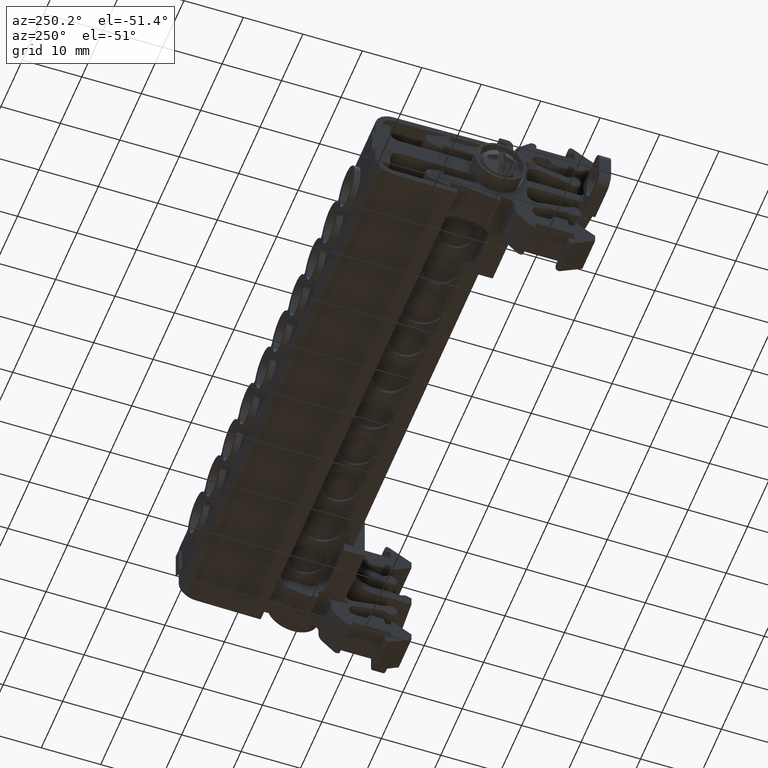
[diagram: clean part render]
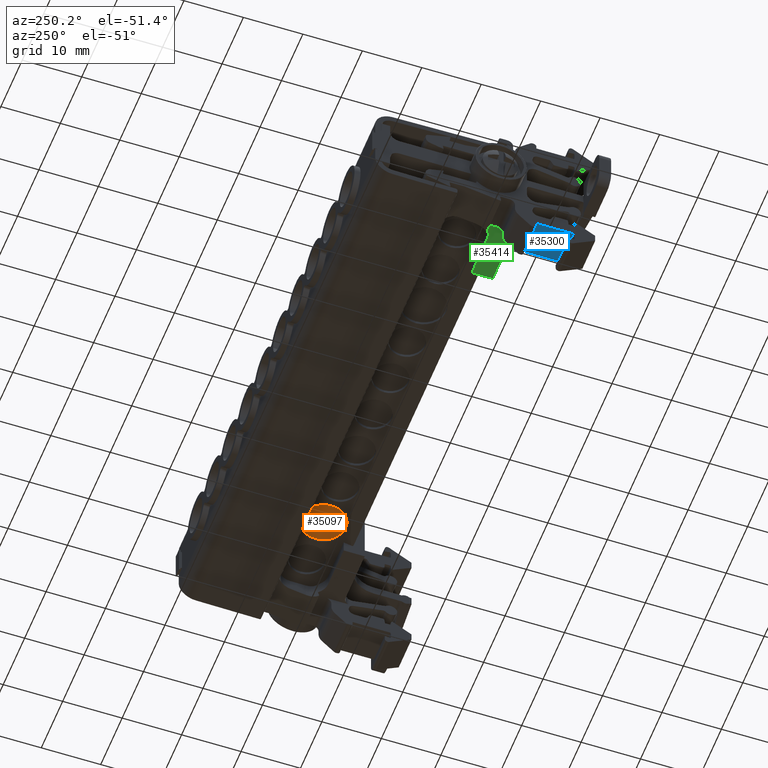
[diagram: same view with three faces highlighted in distinct colors, each labeled with its STEP entity id]
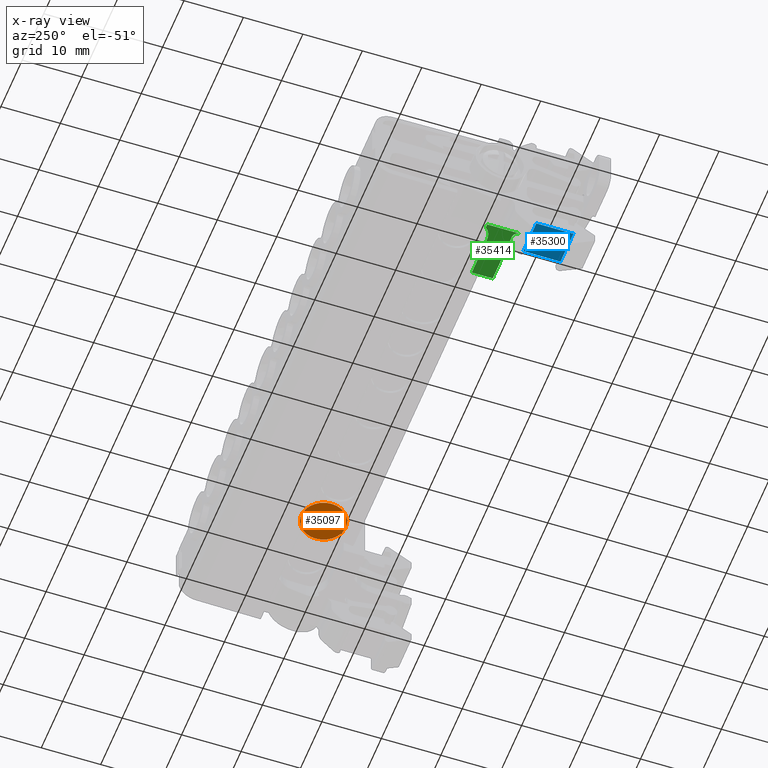
[diagram: x-ray of the same camera — body ghosted, the three highlighted faces saturated]
A machine part, auxiliary view with three faces highlighted in distinct colors.
The next image is the same camera in x-ray (body ghosted, the three faces saturated) — at least one of them is partly hidden behind the body in this view.
Their STEP definitions:

[orange] entity #35097 — the highlighted planar face has unit normal (0, 0, 1).
#712 = CARTESIAN_POINT ( 'NONE',  ( -6.305396493686445500, -39.46391012921720400, 93.25723811290791300 ) ) ;
#734 = CARTESIAN_POINT ( 'NONE',  ( -13.80539649368645900, -39.46391012921720400, 93.25723811290791300 ) ) ;
#1813 = CARTESIAN_POINT ( 'NONE',  ( -10.05539649368645200, -39.46391012921720400, 93.25723811290791300 ) ) ;
#1817 = DIRECTION ( 'NONE',  ( 1.000000000000000000, 0.0000000000000000000, 0.0000000000000000000 ) ) ;
#1832 = DIRECTION ( 'NONE',  ( -0.0000000000000000000, -0.0000000000000000000, -1.000000000000000000 ) ) ;
#7085 = VERTEX_POINT ( 'NONE', #712 ) ;
#7103 = VERTEX_POINT ( 'NONE', #734 ) ;
#8486 = EDGE_CURVE ( 'NONE', #7085, #7103, #14574, .T. ) ;
#9590 = FACE_OUTER_BOUND ( 'NONE', #31317, .T. ) ;
#9782 = PLANE ( 'NONE',  #10302 ) ;
#9835 = CARTESIAN_POINT ( 'NONE',  ( -78.60539649368644200, -44.96391012921720400, 93.25723811290791300 ) ) ;
#9894 = DIRECTION ( 'NONE',  ( 0.0000000000000000000, 0.0000000000000000000, 1.000000000000000000 ) ) ;
#10043 = DIRECTION ( 'NONE',  ( 1.000000000000000000, 0.0000000000000000000, -0.0000000000000000000 ) ) ;
#10302 = AXIS2_PLACEMENT_3D ( 'NONE', #9835, #9894, #10043 ) ;
#14574 = CIRCLE ( 'NONE', #14617, 3.750000000000006700 ) ;
#14617 = AXIS2_PLACEMENT_3D ( 'NONE', #1813, #1832, #1817 ) ;
#18245 = AXIS2_PLACEMENT_3D ( 'NONE', #31406, #31422, #31395 ) ;
#18353 = CIRCLE ( 'NONE', #18245, 3.750000000000006700 ) ;
#21973 = EDGE_CURVE ( 'NONE', #7103, #7085, #18353, .T. ) ;
#24202 = ORIENTED_EDGE ( 'NONE', *, *, #21973, .T. ) ;
#24218 = ORIENTED_EDGE ( 'NONE', *, *, #8486, .T. ) ;
#31317 = EDGE_LOOP ( 'NONE', ( #24218, #24202 ) ) ;
#31395 = DIRECTION ( 'NONE',  ( 1.000000000000000000, 0.0000000000000000000, 0.0000000000000000000 ) ) ;
#31406 = CARTESIAN_POINT ( 'NONE',  ( -10.05539649368645200, -39.46391012921720400, 93.25723811290791300 ) ) ;
#31422 = DIRECTION ( 'NONE',  ( -0.0000000000000000000, -0.0000000000000000000, -1.000000000000000000 ) ) ;
#35097 = ADVANCED_FACE ( 'NONE', ( #9590 ), #9782, .F. ) ;

[blue] entity #35300 — the highlighted planar face has unit normal (0, 0, -1).
#261 = CARTESIAN_POINT ( 'NONE',  ( -83.27539649368617300, -55.10565835826909600, 86.51144215845411600 ) ) ;
#285 = CARTESIAN_POINT ( 'NONE',  ( -77.27539649368614500, -55.10565835826057700, 86.51144214415468500 ) ) ;
#289 = CARTESIAN_POINT ( 'NONE',  ( -83.27539649368620200, -48.89155226868010100, 86.51144221565189700 ) ) ;
#372 = CARTESIAN_POINT ( 'NONE',  ( -77.27539649368621600, -48.89155226868005100, 86.51144221565189700 ) ) ;
#3594 = VERTEX_POINT ( 'NONE', #285 ) ;
#3682 = VERTEX_POINT ( 'NONE', #261 ) ;
#3989 = VERTEX_POINT ( 'NONE', #289 ) ;
#4068 = VERTEX_POINT ( 'NONE', #372 ) ;
#6112 = ORIENTED_EDGE ( 'NONE', *, *, #9023, .T. ) ;
#6133 = ORIENTED_EDGE ( 'NONE', *, *, #21375, .F. ) ;
#6142 = ORIENTED_EDGE ( 'NONE', *, *, #9011, .T. ) ;
#6163 = ORIENTED_EDGE ( 'NONE', *, *, #21350, .F. ) ;
#7466 = B_SPLINE_CURVE_WITH_KNOTS ( 'NONE', 3,
 ( #26451, #26467, #26583, #26533 ),
 .UNSPECIFIED., .F., .F.,
 ( 4, 4 ),
 ( 0.0000000000000000000, 1.000000000000000000 ),
 .UNSPECIFIED. ) ;
#9011 = EDGE_CURVE ( 'NONE', #3594, #3682, #17458, .T. ) ;
#9023 = EDGE_CURVE ( 'NONE', #3989, #4068, #17513, .T. ) ;
#10519 = AXIS2_PLACEMENT_3D ( 'NONE', #11659, #11695, #11752 ) ;
#11474 = FACE_OUTER_BOUND ( 'NONE', #15748, .T. ) ;
#11552 = PLANE ( 'NONE',  #10519 ) ;
#11659 = CARTESIAN_POINT ( 'NONE',  ( -83.27539649368630100, -45.74083688173429600, 86.51144221565189700 ) ) ;
#11695 = DIRECTION ( 'NONE',  ( 2.537798099621990400E-015, 2.564731356182475000E-029, -1.000000000000000000 ) ) ;
#11752 = DIRECTION ( 'NONE',  ( -1.000000000000000000, 0.0000000000000000000, -2.537798099621990400E-015 ) ) ;
#14853 = VECTOR ( 'NONE', #17506, 1000.000000000000000 ) ;
#14873 = VECTOR ( 'NONE', #17478, 1000.000000000000000 ) ;
#15748 = EDGE_LOOP ( 'NONE', ( #6133, #6112, #6163, #6142 ) ) ;
#17458 = LINE ( 'NONE', #17520, #14873 ) ;
#17478 = DIRECTION ( 'NONE',  ( -1.000000000000000000, 0.0000000000000000000, -2.537798099621990400E-015 ) ) ;
#17494 = CARTESIAN_POINT ( 'NONE',  ( -83.27539649368630100, -48.89155226868010100, 86.51144221565189700 ) ) ;
#17506 = DIRECTION ( 'NONE',  ( 1.000000000000000000, -0.0000000000000000000, 2.537798099621990400E-015 ) ) ;
#17513 = LINE ( 'NONE', #17494, #14853 ) ;
#17520 = CARTESIAN_POINT ( 'NONE',  ( -83.27539649368630100, -55.10565835830289700, 86.51144221565189700 ) ) ;
#18613 = VECTOR ( 'NONE', #26363, 1000.000000000000000 ) ;
#21350 = EDGE_CURVE ( 'NONE', #3594, #4068, #26283, .T. ) ;
#21375 = EDGE_CURVE ( 'NONE', #3989, #3682, #7466, .T. ) ;
#26283 = LINE ( 'NONE', #26359, #18613 ) ;
#26359 = CARTESIAN_POINT ( 'NONE',  ( -77.27539649368624500, -50.22354764343170100, 86.51144221565189700 ) ) ;
#26363 = DIRECTION ( 'NONE',  ( -2.223766850332524900E-014, 1.000000000000000000, 0.0000000000000000000 ) ) ;
#26451 = CARTESIAN_POINT ( 'NONE',  ( -83.27539649368620200, -48.89155226868010100, 86.51144221565189700 ) ) ;
#26467 = CARTESIAN_POINT ( 'NONE',  ( -83.27539649368617300, -50.96292096522107300, 86.51144221565189700 ) ) ;
#26533 = CARTESIAN_POINT ( 'NONE',  ( -83.27539649368617300, -55.10565835826909600, 86.51144215845411600 ) ) ;
#26583 = CARTESIAN_POINT ( 'NONE',  ( -83.27539649368615900, -53.03428966176203800, 86.51144221565189700 ) ) ;
#35300 = ADVANCED_FACE ( 'NONE', ( #11474 ), #11552, .T. ) ;

[green] entity #35414 — the highlighted planar face has unit normal (0, 0, -1).
#4415 = B_SPLINE_CURVE_WITH_KNOTS ( 'NONE', 3,
 ( #27914, #27918, #27905, #27906, #27895, #27919, #27922, #27929, #27946, #27894, #27916, #27896, #27923, #27897, #27924, #27907, #27927, #27926 ),
 .UNSPECIFIED., .F., .F.,
 ( 4, 1, 1, 2, 2, 2, 1, 1, 2, 2, 4 ),
 ( 0.0000000000000000000, 0.1249999999999965000, 0.1874999999999812100, 0.2187499999999867600, 0.2499999999999922800, 0.4999999999999855100, 0.6249999999999953400, 0.6874999999999986700, 0.7187500000000061100, 0.7500000000000135400, 1.000000000000000000 ),
 .UNSPECIFIED. ) ;
#4435 = B_SPLINE_CURVE_WITH_KNOTS ( 'NONE', 3,
 ( #28362, #28338, #28363, #28333, #28391, #28364 ),
 .UNSPECIFIED., .F., .F.,
 ( 4, 2, 4 ),
 ( 0.0000000000000000000, 0.5000000000000000000, 1.000000000000000000 ),
 .UNSPECIFIED. ) ;
#5403 = CARTESIAN_POINT ( 'NONE',  ( -83.27539649368620200, -42.80428648738130400, 90.73144221564120900 ) ) ;
#5410 = LINE ( 'NONE', #5403, #18123 ) ;
#5437 = DIRECTION ( 'NONE',  ( -1.000000000000000000, -1.045342522463994000E-014, 1.843268755990104700E-015 ) ) ;
#10628 = AXIS2_PLACEMENT_3D ( 'NONE', #13358, #13380, #13363 ) ;
#12941 = EDGE_LOOP ( 'NONE', ( #23287, #23334, #23285, #23245, #23275, #23350, #23236, #23250 ) ) ;
#13354 = FACE_OUTER_BOUND ( 'NONE', #12941, .T. ) ;
#13358 = CARTESIAN_POINT ( 'NONE',  ( 0.3506835063133985100, -49.67006088806910900, 90.73144221564049900 ) ) ;
#13363 = DIRECTION ( 'NONE',  ( 0.0000000000000000000, 1.000000000000000000, 1.383348239789810300E-013 ) ) ;
#13374 = PLANE ( 'NONE',  #10628 ) ;
#13380 = DIRECTION ( 'NONE',  ( 2.589419078423885000E-015, 1.383348239789810300E-013, -1.000000000000000000 ) ) ;
#18123 = VECTOR ( 'NONE', #5437, 1000.000000000000000 ) ;
#18507 = VECTOR ( 'NONE', #31102, 1000.000000000000000 ) ;
#18672 = VECTOR ( 'NONE', #27990, 1000.000000000000000 ) ;
#18779 = VECTOR ( 'NONE', #28285, 1000.000000000000000 ) ;
#19082 = VECTOR ( 'NONE', #30591, 1000.000000000000000 ) ;
#19107 = VECTOR ( 'NONE', #30936, 1000.000000000000000 ) ;
#20925 = EDGE_CURVE ( 'NONE', #22564, #22547, #5410, .T. ) ;
#21525 = EDGE_CURVE ( 'NONE', #29370, #29321, #4415, .T. ) ;
#21533 = EDGE_CURVE ( 'NONE', #22460, #22547, #27998, .T. ) ;
#21598 = EDGE_CURVE ( 'NONE', #29321, #22460, #28317, .T. ) ;
#21607 = EDGE_CURVE ( 'NONE', #22564, #29347, #4435, .T. ) ;
#21858 = EDGE_CURVE ( 'NONE', #29347, #29584, #30605, .T. ) ;
#21895 = EDGE_CURVE ( 'NONE', #29590, #29370, #30976, .T. ) ;
#21929 = EDGE_CURVE ( 'NONE', #29590, #29584, #31172, .T. ) ;
#22460 = VERTEX_POINT ( 'NONE', #32338 ) ;
#22547 = VERTEX_POINT ( 'NONE', #32352 ) ;
#22564 = VERTEX_POINT ( 'NONE', #32462 ) ;
#23236 = ORIENTED_EDGE ( 'NONE', *, *, #20925, .F. ) ;
#23245 = ORIENTED_EDGE ( 'NONE', *, *, #21525, .T. ) ;
#23250 = ORIENTED_EDGE ( 'NONE', *, *, #21607, .T. ) ;
#23275 = ORIENTED_EDGE ( 'NONE', *, *, #21598, .T. ) ;
#23285 = ORIENTED_EDGE ( 'NONE', *, *, #21895, .T. ) ;
#23287 = ORIENTED_EDGE ( 'NONE', *, *, #21858, .T. ) ;
#23334 = ORIENTED_EDGE ( 'NONE', *, *, #21929, .F. ) ;
#23350 = ORIENTED_EDGE ( 'NONE', *, *, #21533, .T. ) ;
#26200 = CARTESIAN_POINT ( 'NONE',  ( -76.26739649368660400, -47.31558989761750700, 90.73144221564065500 ) ) ;
#26227 = CARTESIAN_POINT ( 'NONE',  ( -77.27539649368642900, -48.32358989761749500, 90.73144221564064100 ) ) ;
#26264 = CARTESIAN_POINT ( 'NONE',  ( -74.50339649368672200, -43.78758989761734500, 90.73144221564109600 ) ) ;
#26466 = CARTESIAN_POINT ( 'NONE',  ( -67.27539649368668500, -43.78758989761728100, 90.73144221564115200 ) ) ;
#26527 = CARTESIAN_POINT ( 'NONE',  ( -67.27539649368667100, -47.31558989761750000, 90.73144221564092500 ) ) ;
#27894 = CARTESIAN_POINT ( 'NONE',  ( -77.02926819734551600, -47.65988189096594100, 90.73144221564061200 ) ) ;
#27895 = CARTESIAN_POINT ( 'NONE',  ( -76.57856324508699700, -47.36467220209150500, 90.73144221564062700 ) ) ;
#27896 = CARTESIAN_POINT ( 'NONE',  ( -77.15450779872389800, -47.84251423230788400, 90.73144221564057000 ) ) ;
#27897 = CARTESIAN_POINT ( 'NONE',  ( -77.19140109077713400, -47.92037104171495100, 90.73144221564057000 ) ) ;
#27905 = CARTESIAN_POINT ( 'NONE',  ( -76.42607638061485900, -47.32455476422761400, 90.73144221564061200 ) ) ;
#27906 = CARTESIAN_POINT ( 'NONE',  ( -76.53327619799796400, -47.35032801545116900, 90.73144221564062700 ) ) ;
#27907 = CARTESIAN_POINT ( 'NONE',  ( -77.25166991026500800, -48.07121060102951300, 90.73144221564054100 ) ) ;
#27914 = CARTESIAN_POINT ( 'NONE',  ( -76.26739649368660400, -47.31558989761750700, 90.73144221564065500 ) ) ;
#27916 = CARTESIAN_POINT ( 'NONE',  ( -77.09415712001703000, -47.73938913357901700, 90.73144221564058400 ) ) ;
#27918 = CARTESIAN_POINT ( 'NONE',  ( -76.33156789569997600, -47.31565743621406000, 90.73144221564064100 ) ) ;
#27919 = CARTESIAN_POINT ( 'NONE',  ( -76.60860889163755900, -47.37496799486163500, 90.73144221564061200 ) ) ;
#27922 = CARTESIAN_POINT ( 'NONE',  ( -76.62229809632019300, -47.37998401568182800, 90.73144221564064100 ) ) ;
#27923 = CARTESIAN_POINT ( 'NONE',  ( -77.17708243293898800, -47.88893212798031100, 90.73144221564057000 ) ) ;
#27924 = CARTESIAN_POINT ( 'NONE',  ( -77.19874225001896700, -47.93771790904782600, 90.73144221564055600 ) ) ;
#27926 = CARTESIAN_POINT ( 'NONE',  ( -77.27539649368642900, -48.32358989761749500, 90.73144221564064100 ) ) ;
#27927 = CARTESIAN_POINT ( 'NONE',  ( -77.27526104110803800, -48.19489042344232400, 90.73144221564052700 ) ) ;
#27929 = CARTESIAN_POINT ( 'NONE',  ( -76.76753887776313000, -47.43739748586456500, 90.73144221564059800 ) ) ;
#27946 = CARTESIAN_POINT ( 'NONE',  ( -76.88194399267671000, -47.51271500461248800, 90.73144221564059800 ) ) ;
#27956 = CARTESIAN_POINT ( 'NONE',  ( -77.27539649368630100, -49.67006088806910900, 90.73144221564030000 ) ) ;
#27990 = DIRECTION ( 'NONE',  ( 0.0000000000000000000, 1.000000000000000000, 1.383348239789810300E-013 ) ) ;
#27998 = LINE ( 'NONE', #27956, #18672 ) ;
#28285 = DIRECTION ( 'NONE',  ( 0.0000000000000000000, 1.000000000000000000, 1.383348239789810300E-013 ) ) ;
#28317 = LINE ( 'NONE', #28329, #18779 ) ;
#28329 = CARTESIAN_POINT ( 'NONE',  ( -77.27539649368640100, -49.67006088806910900, 90.73144221564030000 ) ) ;
#28333 = CARTESIAN_POINT ( 'NONE',  ( -75.30118045401164300, -43.70149105857397800, 90.73144221564111000 ) ) ;
#28338 = CARTESIAN_POINT ( 'NONE',  ( -76.35749740300119000, -43.11608922624691300, 90.73144221564118100 ) ) ;
#28362 = CARTESIAN_POINT ( 'NONE',  ( -76.62107175438347900, -42.80428648738121900, 90.73144221564122300 ) ) ;
#28363 = CARTESIAN_POINT ( 'NONE',  ( -76.04044317097749700, -43.35805844200772400, 90.73144221564119500 ) ) ;
#28364 = CARTESIAN_POINT ( 'NONE',  ( -74.50339649368672200, -43.78758989761734500, 90.73144221564109600 ) ) ;
#28391 = CARTESIAN_POINT ( 'NONE',  ( -74.91204201440903900, -43.78742944101616500, 90.73144221564113800 ) ) ;
#29321 = VERTEX_POINT ( 'NONE', #26227 ) ;
#29347 = VERTEX_POINT ( 'NONE', #26264 ) ;
#29370 = VERTEX_POINT ( 'NONE', #26200 ) ;
#29584 = VERTEX_POINT ( 'NONE', #26466 ) ;
#29590 = VERTEX_POINT ( 'NONE', #26527 ) ;
#30591 = DIRECTION ( 'NONE',  ( 1.000000000000000000, 1.123605221868040000E-014, 1.554910917482993100E-027 ) ) ;
#30605 = LINE ( 'NONE', #30612, #19082 ) ;
#30612 = CARTESIAN_POINT ( 'NONE',  ( -81.40589022088759900, -43.78758989761740800, 90.73144221564109600 ) ) ;
#30921 = CARTESIAN_POINT ( 'NONE',  ( 0.3506835063133985100, -47.31558989761750000, 90.73144221564082600 ) ) ;
#30936 = DIRECTION ( 'NONE',  ( -1.000000000000000000, 3.582068324215834200E-028, -2.589419078423885000E-015 ) ) ;
#30976 = LINE ( 'NONE', #30921, #19107 ) ;
#31102 = DIRECTION ( 'NONE',  ( -1.123605221868004000E-014, 1.000000000000000000, 0.0000000000000000000 ) ) ;
#31137 = CARTESIAN_POINT ( 'NONE',  ( -67.27539649368667100, -45.09798989761760200, 90.73144221564119500 ) ) ;
#31172 = LINE ( 'NONE', #31137, #18507 ) ;
#32338 = CARTESIAN_POINT ( 'NONE',  ( -77.27539649368638700, -44.57063839725164200, 90.73144221564099600 ) ) ;
#32352 = CARTESIAN_POINT ( 'NONE',  ( -77.27539649368662800, -42.80428648738123300, 90.73144221564122300 ) ) ;
#32462 = CARTESIAN_POINT ( 'NONE',  ( -76.62107175438347900, -42.80428648738121900, 90.73144221564122300 ) ) ;
#35414 = ADVANCED_FACE ( 'NONE', ( #13354 ), #13374, .T. ) ;